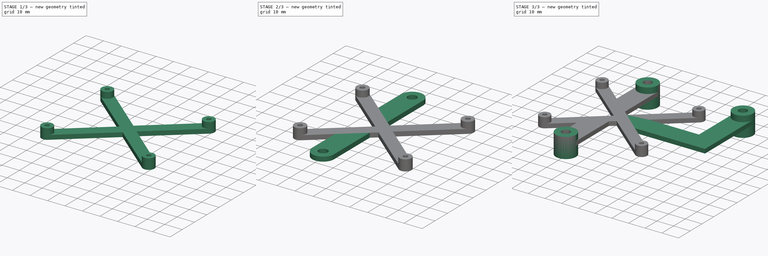
[diagram: build sequence overview — one tinted view per stage of 3, left to right]
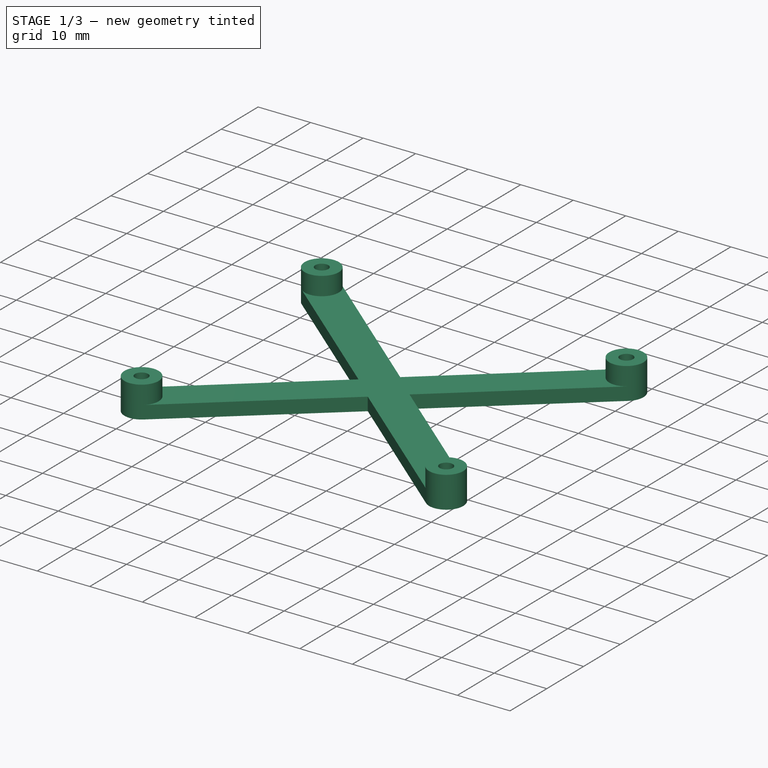
[diagram: stage 1 of 3 — iso view after this stage's code; geometry added in this stage tinted green]
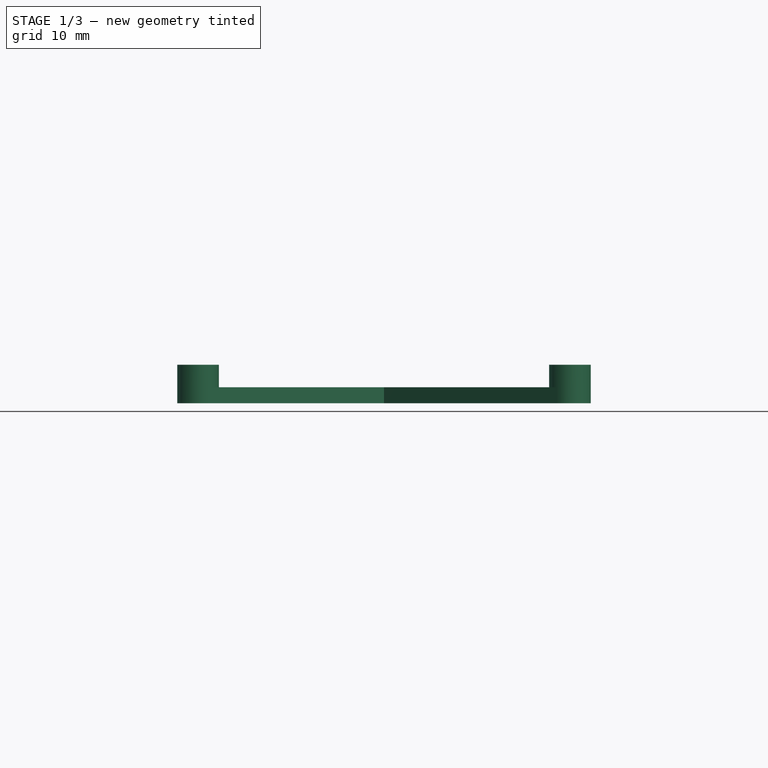
[diagram: stage 1 of 3 — front view after this stage's code; geometry added in this stage tinted green]
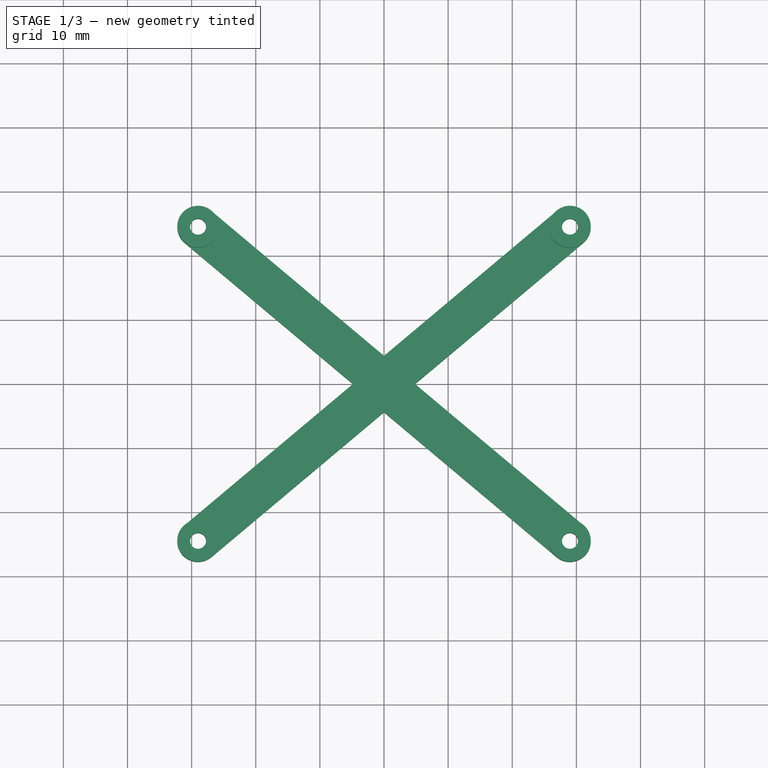
[diagram: stage 1 of 3 — top view after this stage's code; geometry added in this stage tinted green]
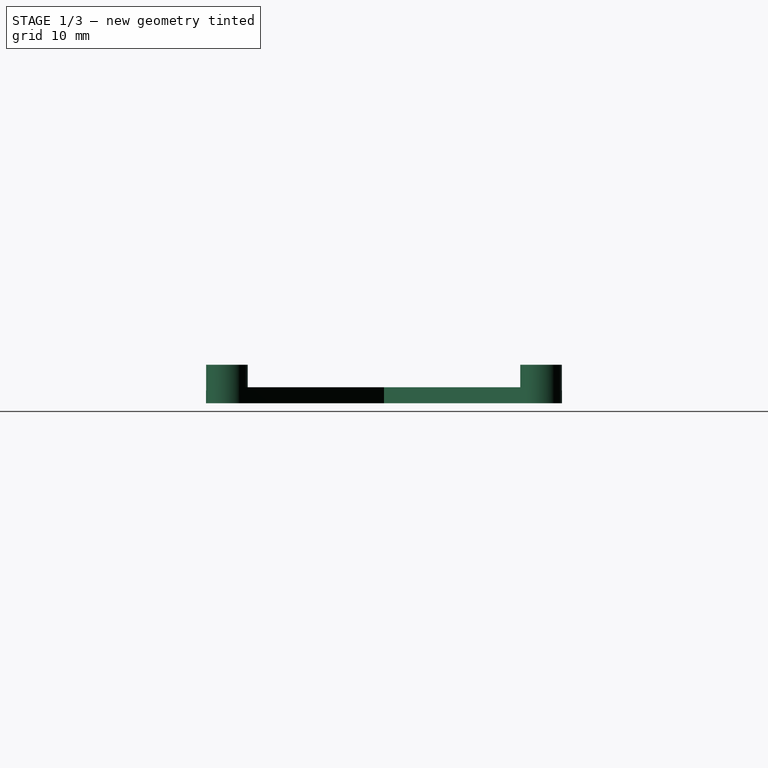
[diagram: stage 1 of 3 — right view after this stage's code; geometry added in this stage tinted green]
FCSTD DOCUMENT  (FreeCAD 0.15R4671 (Git))
Label: support_rpi2
License: All rights reserved
LicenseURL: http://fr.wikipedia.org/wiki/<copyright redacted>
objects: Sketcher::SketchObject×5, PartDesign::Pad×5, PartDesign::Mirrored×1
note: 16 computed .brp shape members not serialized (recipe doc carries the construction recipe); baked Part::Feature solids carry a one-line shape summary decoded from their .brp

FEATURE [Sketcher::SketchObject] Sketch
  sketch-geometry (24):
    g0: LineSegment [constr] StartX=-42.5 StartY=28 StartZ=0 EndX=42.5 EndY=28 EndZ=0
    g1: LineSegment [constr] StartX=42.5 StartY=28 StartZ=0 EndX=42.5 EndY=-28 EndZ=0
    g2: LineSegment [constr] StartX=42.5 StartY=-28 StartZ=0 EndX=-42.5 EndY=-28 EndZ=0
    g3: LineSegment [constr] StartX=-42.5 StartY=-28 StartZ=0 EndX=-42.5 EndY=28 EndZ=0
    g4: Circle CenterX=-39 CenterY=24.5 CenterZ=0 NormalX=0 NormalY=0 NormalZ=1 Radius=1.25
    g5: Circle CenterX=19 CenterY=24.5 CenterZ=0 NormalX=0 NormalY=0 NormalZ=1 Radius=1.25
    g6: LineSegment StartX=-10 StartY=4.40868 StartZ=0 EndX=16.9109 EndY=26.9896 EndZ=0
    g7: LineSegment StartX=21.0891 StartY=22.0104 StartZ=0 EndX=-5.14186 EndY=0 EndZ=0
    g8: LineSegment StartX=-14.8581 StartY=0 StartZ=0 EndX=-41.0891 EndY=22.0104 EndZ=0
    g9: LineSegment StartX=-36.9109 StartY=26.9896 StartZ=0 EndX=-10 EndY=4.40868 EndZ=0
    g10: ArcOfCircle CenterX=-39 CenterY=24.5 CenterZ=0 NormalX=0 NormalY=0 NormalZ=1 Radius=3.25 StartAngle=0.872665 EndAngle=4.01426
    g11: ArcOfCircle CenterX=19 CenterY=24.5 CenterZ=0 NormalX=0 NormalY=0 NormalZ=1 Radius=3.25 StartAngle=5.41052 EndAngle=8.55211
    g12: LineSegment [constr] StartX=16.9109 StartY=26.9896 StartZ=0 EndX=21.0891 EndY=22.0104 EndZ=0
    g13: LineSegment [constr] StartX=-41.0891 StartY=22.0104 StartZ=0 EndX=-36.9109 EndY=26.9896 EndZ=0
    g14: Circle CenterX=-39 CenterY=-24.5 CenterZ=0 NormalX=0 NormalY=0 NormalZ=1 Radius=1.25
    g15: Circle CenterX=19 CenterY=-24.5 CenterZ=0 NormalX=0 NormalY=0 NormalZ=1 Radius=1.25
    g16: LineSegment StartX=-14.8581 StartY=0 StartZ=0 EndX=-41.0891 EndY=-22.0104 EndZ=0
    g17: LineSegment StartX=-10 StartY=-4.40868 StartZ=0 EndX=-36.9109 EndY=-26.9896 EndZ=0
    g18: LineSegment StartX=-10 StartY=-4.40868 StartZ=0 EndX=16.9109 EndY=-26.9896 EndZ=0
    g19: LineSegment StartX=-5.14186 StartY=0 StartZ=0 EndX=21.0891 EndY=-22.0104 EndZ=0
    g20: ArcOfCircle CenterX=-39 CenterY=-24.5 CenterZ=0 NormalX=0 NormalY=0 NormalZ=1 Radius=3.25 StartAngle=2.26893 EndAngle=5.41052
    g21: ArcOfCircle CenterX=19 CenterY=-24.5 CenterZ=0 NormalX=0 NormalY=0 NormalZ=1 Radius=3.25 StartAngle=4.01426 EndAngle=7.15585
    g22: LineSegment [constr] StartX=16.9109 StartY=-26.9896 StartZ=0 EndX=21.0891 EndY=-22.0104 EndZ=0
    g23: LineSegment [constr] StartX=-41.0891 StartY=-22.0104 StartZ=0 EndX=-36.9109 EndY=-26.9896 EndZ=0
  constraints (70):
    c: Coincident(g0,g1)
    c: Coincident(g1,g2)
    c: Coincident(g2,g3)
    c: Coincident(g3,g0)
    c: Horizontal(g0)
    c: Horizontal(g2)
    c: Vertical(g1)
    c: Vertical(g3)
    c: Symmetric(g0,g1,g-1)
    c: Distance(g3) = 56
    c: Distance(g0) = 85
    c: Equal(g4,g5)
    c: DistanceY(g4,g5) = 0
    c: DistanceX(g4,g0) = -3.5
    c: DistanceY(g4,g0) = 3.5
    c: DistanceX(g4,g5) = 58
    c: PointOnObject(g7,g-1)
    c: PointOnObject(g8,g-1)
    c: Angle(g-1,g8) = 2.44346
    c: Parallel(g9,g8)
    c: Coincident(g10,g4)
    c: Coincident(g10,g8)
    c: Coincident(g10,g9)
    c: Angle(g7,g-1) = 2.44346
    c: Parallel(g7,g6)
    c: Coincident(g11,g5)
    c: Coincident(g11,g6)
    c: Coincident(g11,g7)
    c: Coincident(g12,g6)
    c: Coincident(g12,g7)
    c: Perpendicular(g12,g7)
    c: Symmetric(g7,g6,g5)
    c: Coincident(g13,g8)
    c: Coincident(g13,g9)
    c: Perpendicular(g8,g13)
    c: Symmetric(g8,g9,g4)
    c: Distance(g12) = 6.5
    c: Equal(g12,g13)
    c: Coincident(g6,g9)
    c: Radius(g4) = 1.25
    c: Equal(g4,g15)
    c: Equal(g4,g14)
    c: DistanceY(g14,g15) = 0
    c: DistanceX(g14,g15) = 58
    c: DistanceY(g14,g2) = -3.5
    c: DistanceX(g14,g2) = -3.5
    c: Coincident(g8,g16)
    c: PointOnObject(g19,g-1)
    c: Coincident(g19,g7)
    c: Angle(g19,g-1) = 0.698132
    c: Parallel(g18,g19)
    c: Angle(g16,g-1) = 2.44346
    c: Parallel(g16,g17)
    c: Coincident(g20,g14)
    c: Coincident(g20,g16)
    c: Coincident(g20,g17)
    c: Coincident(g21,g15)
    c: Coincident(g21,g19)
    c: Coincident(g21,g18)
    c: Coincident(g22,g18)
    c: Coincident(g22,g19)
    c: Perpendicular(g22,g19)
    c: Symmetric(g19,g18,g15)
    c: Coincident(g23,g17)
    c: Perpendicular(g17,g23)
    c: Coincident(g23,g16)
    c: Symmetric(g17,g16,g14)
    c: Coincident(g18,g17)
    c: Equal(g22,g23)
    c: Equal(g23,g12)
FEATURE [PartDesign::Pad] Pad
  Length = 2.5
  Length2 = 100
  Sketch = -> Sketch
  Type = 0
FEATURE [Sketcher::SketchObject] Sketch001
  ExternalGeometry = -> [Pad]
  Placement = pos=(0,0,2.5) rot=(0,0,1;0rad)
  Support = -> Pad [Face18]
  sketch-geometry (8):
    g0: Circle CenterX=-39 CenterY=24.5 CenterZ=0 NormalX=0 NormalY=0 NormalZ=1 Radius=1.25
    g1: Circle CenterX=19 CenterY=24.5 CenterZ=0 NormalX=0 NormalY=0 NormalZ=1 Radius=1.25
    g2: Circle CenterX=-39 CenterY=-24.5 CenterZ=0 NormalX=0 NormalY=0 NormalZ=1 Radius=1.25
    g3: Circle CenterX=19 CenterY=-24.5 CenterZ=0 NormalX=0 NormalY=0 NormalZ=1 Radius=1.25
    g4: Circle CenterX=-39 CenterY=24.5 CenterZ=0 NormalX=0 NormalY=0 NormalZ=1 Radius=3.25
    g5: Circle CenterX=19 CenterY=24.5 CenterZ=0 NormalX=0 NormalY=0 NormalZ=1 Radius=3.25
    g6: Circle CenterX=-39 CenterY=-24.5 CenterZ=0 NormalX=0 NormalY=0 NormalZ=1 Radius=3.25
    g7: Circle CenterX=19 CenterY=-24.5 CenterZ=0 NormalX=0 NormalY=0 NormalZ=1 Radius=3.25
  constraints (16):
    c: Coincident(g0,g-3)
    c: Coincident(g1,g-4)
    c: Coincident(g2,g-5)
    c: Coincident(g3,g-6)
    c: Radius(g0) = 1.25
    c: Equal(g0,g1)
    c: Equal(g0,g3)
    c: Equal(g0,g2)
    c: Coincident(g7,g3)
    c: Coincident(g1,g5)
    c: Coincident(g4,g0)
    c: Coincident(g6,g2)
    c: PointOnObject(g-3,g4)
    c: PointOnObject(g-4,g5)
    c: PointOnObject(g-5,g6)
    c: PointOnObject(g-6,g7)
FEATURE [PartDesign::Pad] Pad001
  Length = 3.5
  Length2 = 100
  Sketch = -> Sketch001
  Type = 0
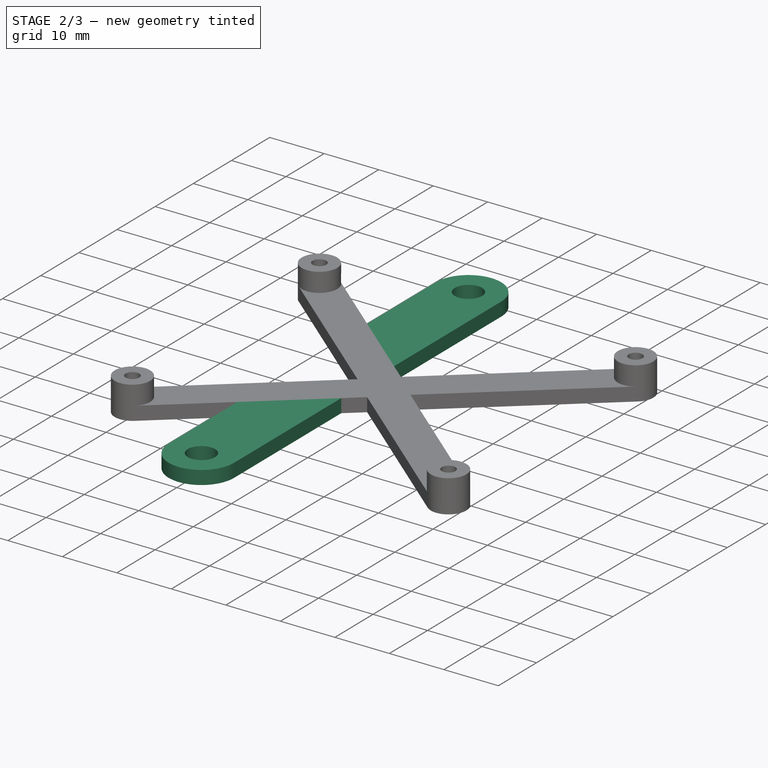
[diagram: stage 2 of 3 — iso view after this stage's code; geometry added in this stage tinted green]
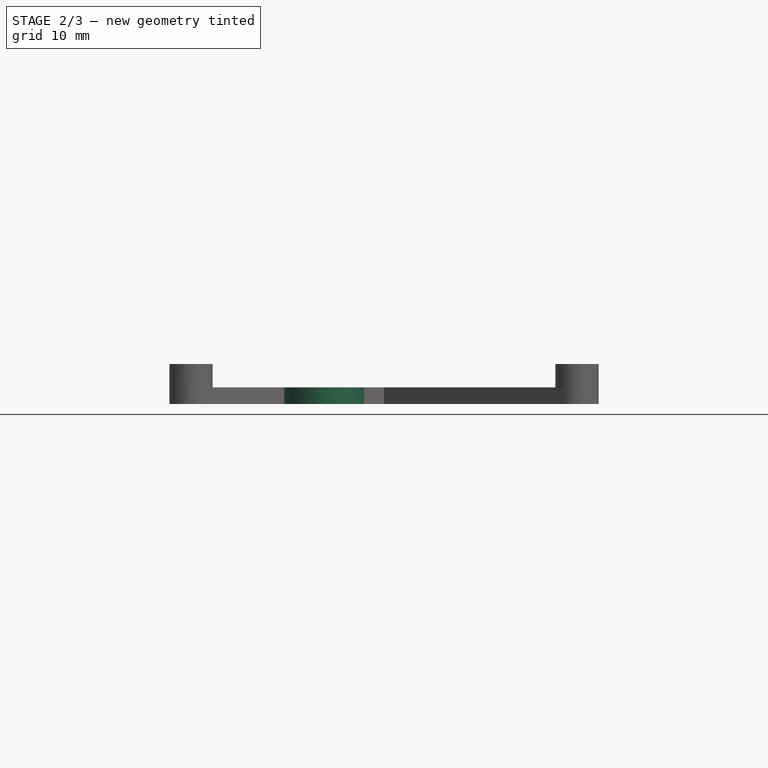
[diagram: stage 2 of 3 — front view after this stage's code; geometry added in this stage tinted green]
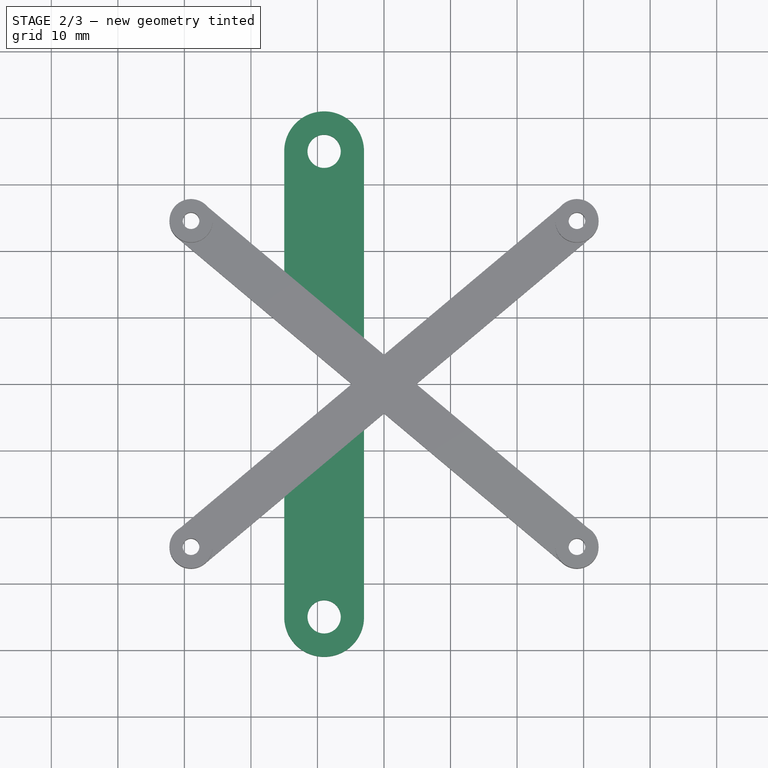
[diagram: stage 2 of 3 — top view after this stage's code; geometry added in this stage tinted green]
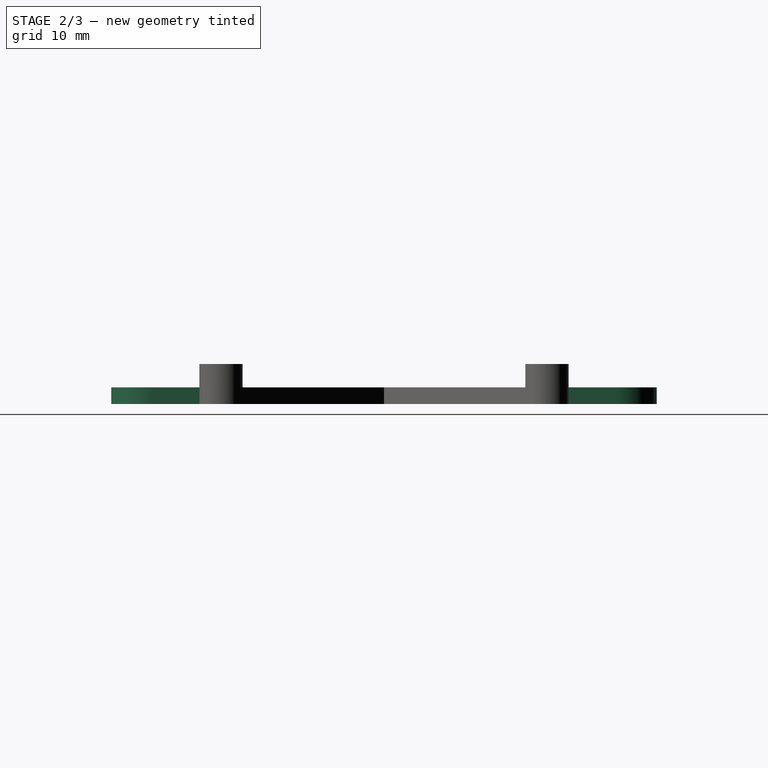
[diagram: stage 2 of 3 — right view after this stage's code; geometry added in this stage tinted green]
FEATURE [Sketcher::SketchObject] Sketch002
  ExternalGeometry = -> [Pad001]
  Placement = pos=(0,0,0) rot=(1,0,0;3.14159rad)
  Support = -> Pad001 [Face3]
  sketch-geometry (6):
    g0: LineSegment StartX=-13 StartY=-6.92598 StartZ=0 EndX=-13 EndY=-34.9896 EndZ=0
    g1: LineSegment StartX=-25 StartY=-16.9952 StartZ=0 EndX=-25 EndY=-34.9896 EndZ=0
    g2: Circle CenterX=-19 CenterY=-34.9896 CenterZ=0 NormalX=0 NormalY=0 NormalZ=1 Radius=2.5
    g3: LineSegment [constr] StartX=-25 StartY=-34.9896 StartZ=0 EndX=-13 EndY=-34.9896 EndZ=0
    g4: ArcOfCircle CenterX=-19 CenterY=-34.9896 CenterZ=0 NormalX=0 NormalY=0 NormalZ=1 Radius=6 StartAngle=3.14159 EndAngle=6.28319
    g5: LineSegment StartX=-25 StartY=-16.9952 StartZ=0 EndX=-13 EndY=-6.92598 EndZ=0
  constraints (17):
    c: PointOnObject(g0,g-3)
    c: Vertical(g0)
    c: PointOnObject(g1,g-3)
    c: Vertical(g1)
    c: Radius(g2) = 2.5
    c: Coincident(g3,g1)
    c: Coincident(g3,g0)
    c: Horizontal(g3)
    c: PointOnObject(g2,g3)
    c: Coincident(g4,g2)
    c: Coincident(g4,g1)
    c: Coincident(g4,g0)
    c: Radius(g4) = 6
    c: DistanceY(g2,g-3) = 8
    c: Coincident(g5,g1)
    c: Coincident(g5,g0)
    c: DistanceX(g-4,g2) = 20
FEATURE [PartDesign::Pad] Pad002
  Length = 2.5
  Length2 = 100
  Reversed = true
  Sketch = -> Sketch002
  Type = 0
FEATURE [PartDesign::Mirrored] Mirrored
  MirrorPlane = -> Sketch002 [H_Axis]
  Originals = -> [Pad002]
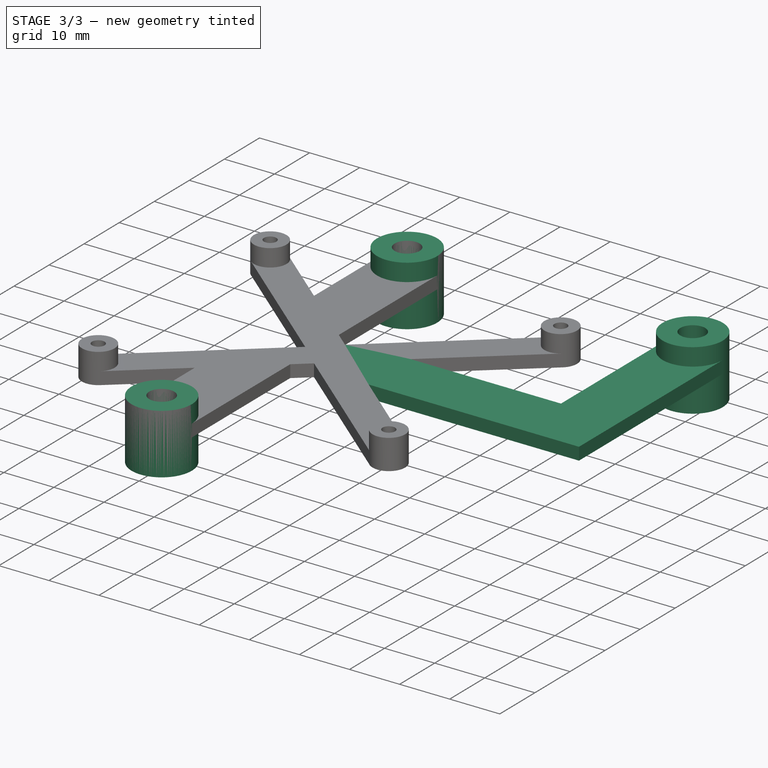
[diagram: stage 3 of 3 — iso view after this stage's code; geometry added in this stage tinted green]
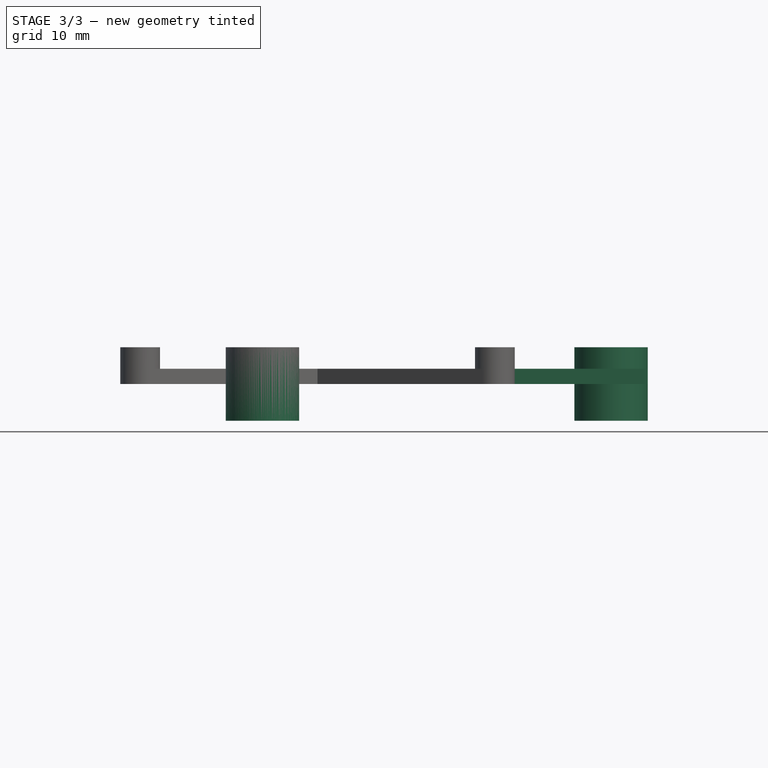
[diagram: stage 3 of 3 — front view after this stage's code; geometry added in this stage tinted green]
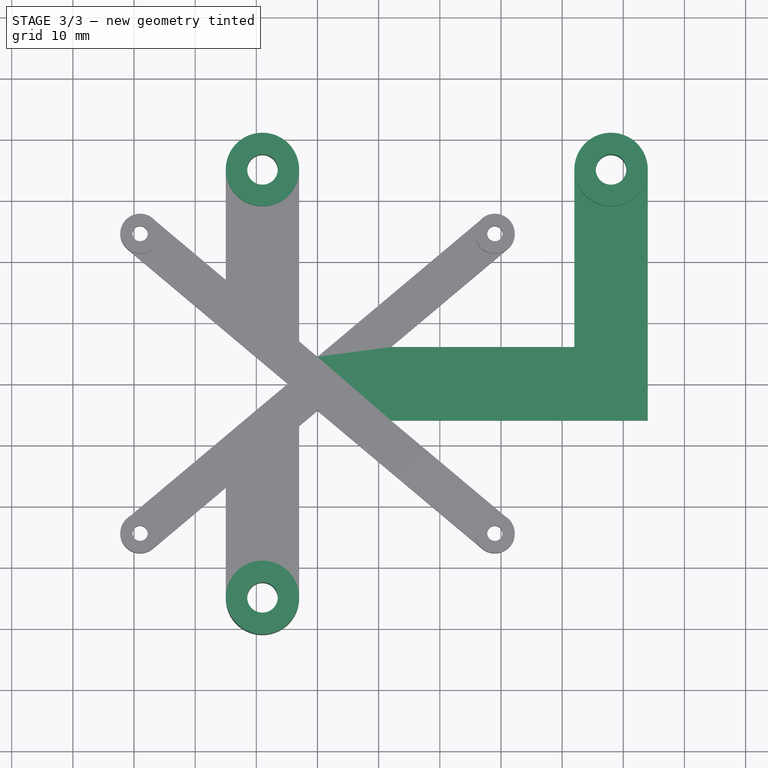
[diagram: stage 3 of 3 — top view after this stage's code; geometry added in this stage tinted green]
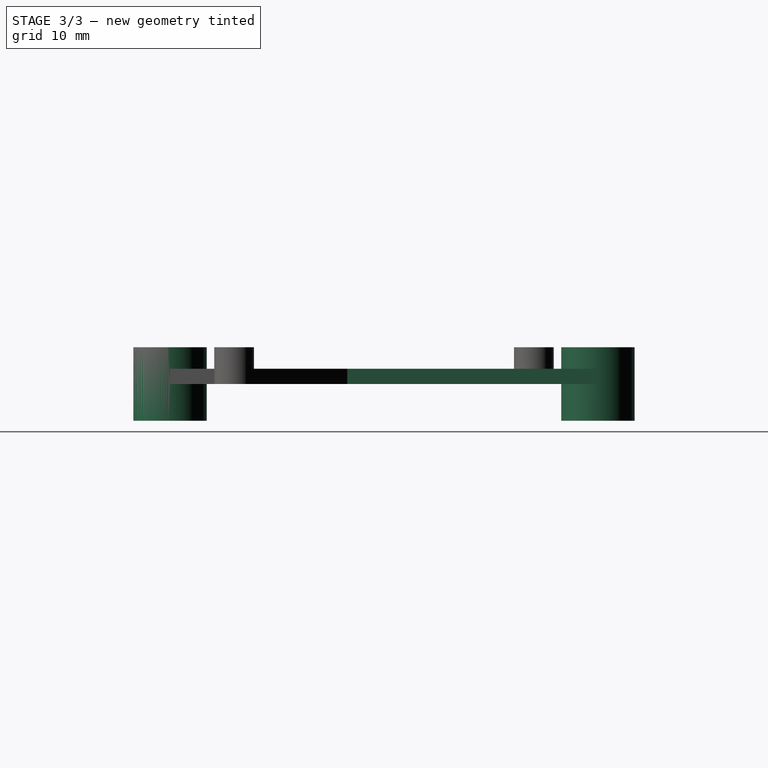
[diagram: stage 3 of 3 — right view after this stage's code; geometry added in this stage tinted green]
FEATURE [Sketcher::SketchObject] Sketch003
  ExternalGeometry = -> [Mirrored]
  Placement = pos=(0,0,0) rot=(1,0,0;3.14159rad)
  Support = -> Mirrored [Face29]
  sketch-geometry (11):
    g0: LineSegment StartX=2.00866 StartY=6 StartZ=0 EndX=32 EndY=6 EndZ=0
    g1: LineSegment StartX=2.00866 StartY=-6 StartZ=0 EndX=32 EndY=-6 EndZ=0
    g2: LineSegment StartX=2.00866 StartY=6 StartZ=0 EndX=-5.14186 EndY=0 EndZ=0
    g3: LineSegment StartX=2.00866 StartY=-6 StartZ=0 EndX=-5.14186 EndY=0 EndZ=0
    g4: LineSegment StartX=32 StartY=6 StartZ=0 EndX=44 EndY=6 EndZ=0
    g5: LineSegment StartX=44 StartY=6 StartZ=0 EndX=44 EndY=-34.9896 EndZ=0
    g6: LineSegment [constr] StartX=44 StartY=-34.9896 StartZ=0 EndX=32 EndY=-34.9896 EndZ=0
    g7: LineSegment StartX=32 StartY=-34.9896 StartZ=0 EndX=32 EndY=-6 EndZ=0
    g8: LineSegment [constr] StartX=2.00866 StartY=6 StartZ=0 EndX=2.00866 EndY=-6 EndZ=0
    g9: Circle CenterX=38 CenterY=-34.9896 CenterZ=0 NormalX=0 NormalY=0 NormalZ=1 Radius=2.5
    g10: ArcOfCircle CenterX=38 CenterY=-34.9896 CenterZ=0 NormalX=0 NormalY=0 NormalZ=1 Radius=6 StartAngle=3.14159 EndAngle=6.28319
  constraints (32):
    c: PointOnObject(g0,g-3)
    c: Horizontal(g0)
    c: PointOnObject(g1,g-4)
    c: Horizontal(g1)
    c: Coincident(g3,g1)
    c: Coincident(g2,g0)
    c: Coincident(g2,g-4)
    c: Coincident(g2,g3)
    c: Coincident(g0,g4)
    c: Horizontal(g4)
    c: Coincident(g4,g5)
    c: Vertical(g5)
    c: Coincident(g5,g6)
    c: Horizontal(g6)
    c: Coincident(g6,g7)
    c: Vertical(g7)
    c: Coincident(g1,g7)
    c: PointOnObject(g8,g0)
    c: PointOnObject(g8,g1)
    c: Vertical(g8)
    c: Equal(g8,g4)
    c: Radius(g9) = 2.5
    c: PointOnObject(g9,g6)
    c: Coincident(g10,g9)
    c: Coincident(g10,g6)
    c: Coincident(g10,g5)
    c: DistanceX(g-5,g4) = 25
    c: Equal(g6,g8)
    c: Radius(g10) = 6
    c: DistanceX(g0,g1) = 0
    c: Coincident(g8,g0)
    c: DistanceY(g-7,g9) = 0
FEATURE [PartDesign::Pad] Pad003
  Length = 2.5
  Length2 = 100
  Reversed = true
  Sketch = -> Sketch003
  Type = 0
FEATURE [Sketcher::SketchObject] Sketch004
  ExternalGeometry = -> [Pad003]
  Placement = pos=(0,0,6) rot=(0,0,1;0rad)
  Support = -> Pad003 [Face32]
  sketch-geometry (6):
    g0: Circle CenterX=-19 CenterY=-34.9896 CenterZ=0 NormalX=0 NormalY=0 NormalZ=1 Radius=2.5
    g1: Circle CenterX=38 CenterY=34.9896 CenterZ=0 NormalX=0 NormalY=0 NormalZ=1 Radius=2.5
    g2: Circle CenterX=-19 CenterY=34.9896 CenterZ=0 NormalX=0 NormalY=0 NormalZ=1 Radius=2.5
    g3: Circle CenterX=-19 CenterY=-34.9896 CenterZ=0 NormalX=0 NormalY=0 NormalZ=1 Radius=6
    g4: Circle CenterX=38 CenterY=34.9896 CenterZ=0 NormalX=0 NormalY=0 NormalZ=1 Radius=6
    g5: Circle CenterX=-19 CenterY=34.9896 CenterZ=0 NormalX=0 NormalY=0 NormalZ=1 Radius=6
  constraints (12):
    c: Coincident(g1,g-5)
    c: Radius(g0) = 2.5
    c: Equal(g0,g2)
    c: Equal(g0,g1)
    c: Coincident(g0,g-3)
    c: Coincident(g2,g-4)
    c: Coincident(g3,g0)
    c: PointOnObject(g-3,g3)
    c: PointOnObject(g-5,g4)
    c: Coincident(g4,g1)
    c: Coincident(g5,g2)
    c: PointOnObject(g-4,g5)
FEATURE [PartDesign::Pad] Pad004
  Length = 12
  Length2 = 100
  Reversed = true
  Sketch = -> Sketch004
  Type = 0
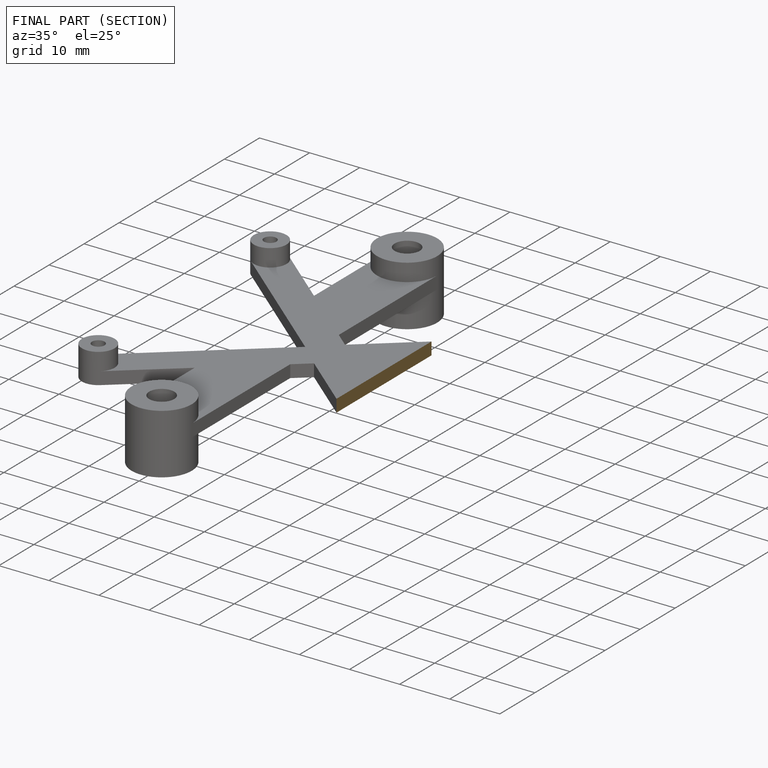
[diagram: finished part — half-section view (interior)]
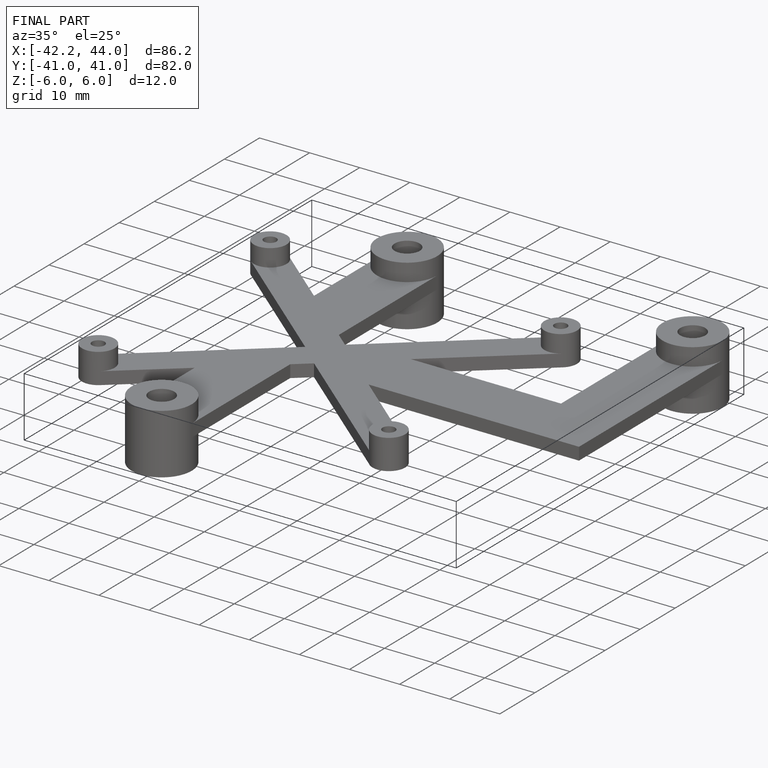
[diagram: finished part — iso view with bounding-box wireframe]
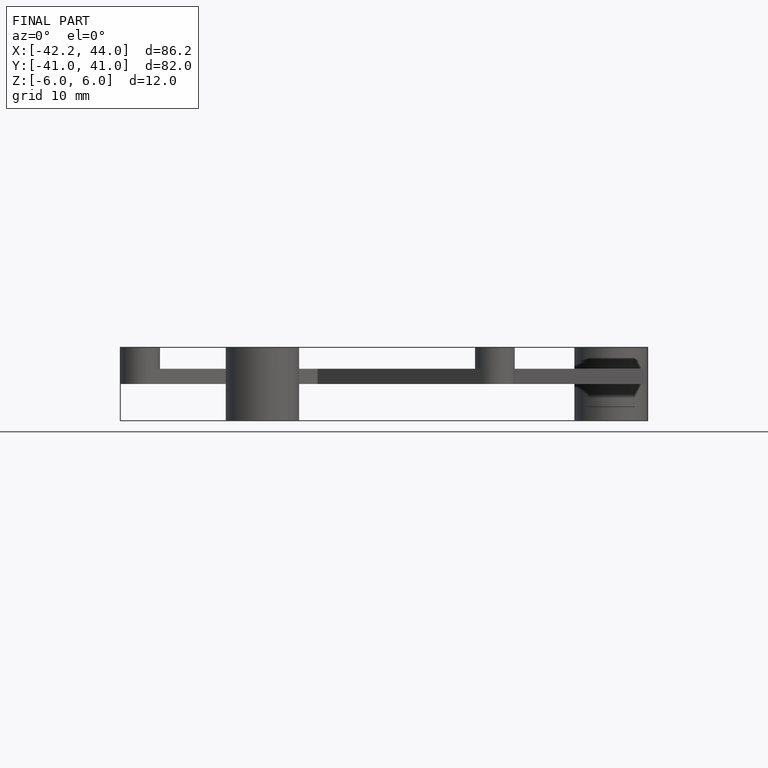
[diagram: finished part — front view with bounding-box wireframe]
